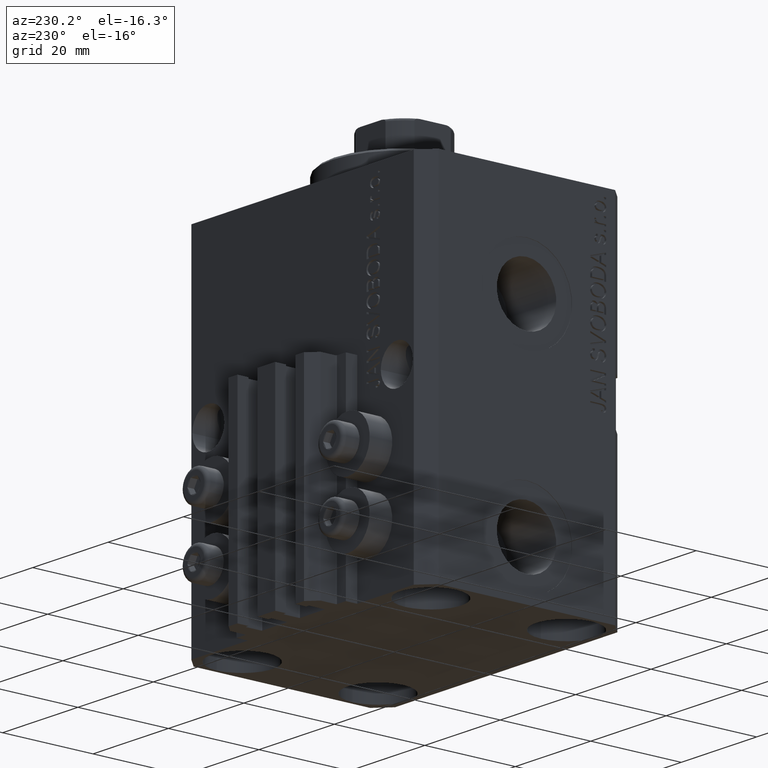
[diagram: clean part render]
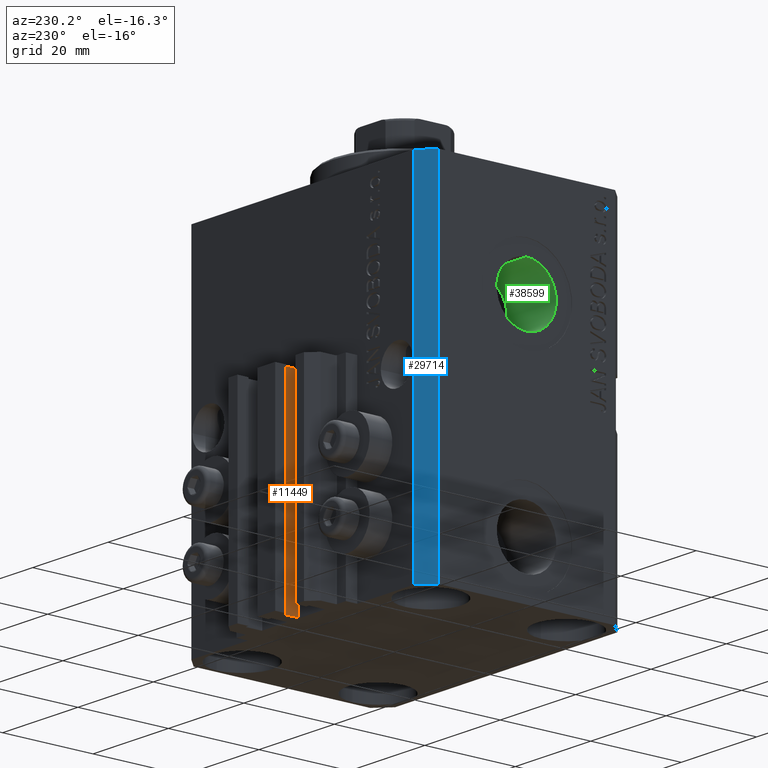
[diagram: same view with three faces highlighted in distinct colors, each labeled with its STEP entity id]
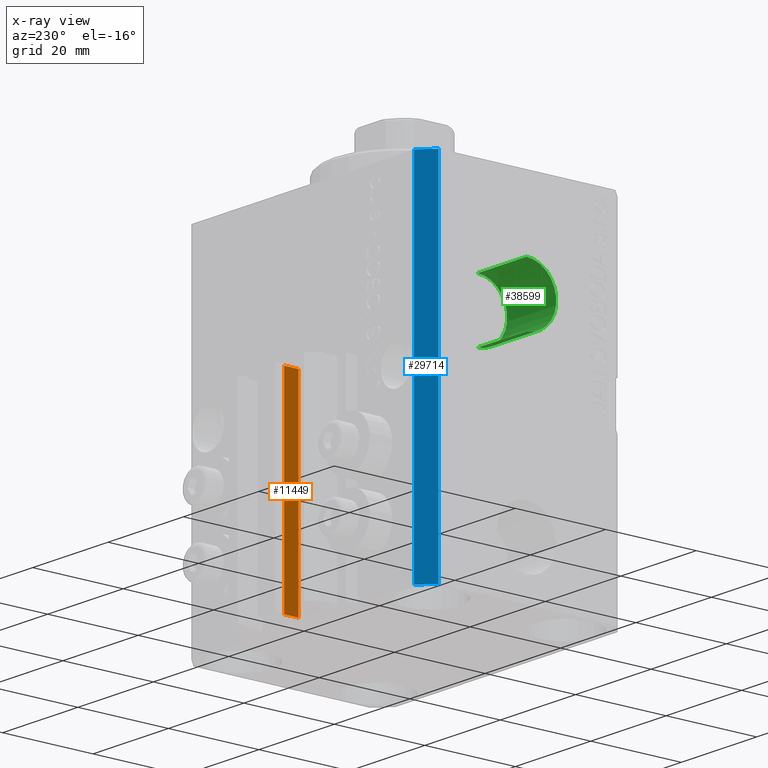
[diagram: x-ray of the same camera — body ghosted, the three highlighted faces saturated]
A machine part, auxiliary view with three faces highlighted in distinct colors.
The next image is the same camera in x-ray (body ghosted, the three faces saturated) — at least one of them is partly hidden behind the body in this view.
Their STEP definitions:

[orange] entity #11449 — the highlighted planar face has unit normal (-1, 0, 0).
#511 = VECTOR ( 'NONE', #24440, 1000.000000000000000 ) ;
#987 = LINE ( 'NONE', #18845, #26549 ) ;
#3440 = LINE ( 'NONE', #39686, #34460 ) ;
#4759 = FACE_OUTER_BOUND ( 'NONE', #35731, .T. ) ;
#4968 = ORIENTED_EDGE ( 'NONE', *, *, #41021, .T. ) ;
#5194 = ORIENTED_EDGE ( 'NONE', *, *, #11856, .F. ) ;
#6621 = LINE ( 'NONE', #35701, #15180 ) ;
#7066 = ORIENTED_EDGE ( 'NONE', *, *, #16585, .T. ) ;
#9012 = CARTESIAN_POINT ( 'NONE',  ( -1.600000000000000755, 24.69999999999949480, -77.00000000000000000 ) ) ;
#9513 = DIRECTION ( 'NONE',  ( -6.776263578034385456E-17, -1.000000000000000000, 0.000000000000000000 ) ) ;
#9911 = CARTESIAN_POINT ( 'NONE',  ( -1.600000000000003197, 27.89999999999950120, -77.00000000000000000 ) ) ;
#11449 = ADVANCED_FACE ( 'NONE', ( #4759 ), #30237, .T. ) ;
#11856 = EDGE_CURVE ( 'NONE', #13576, #26800, #42590, .T. ) ;
#13576 = VERTEX_POINT ( 'NONE', #24800 ) ;
#15180 = VECTOR ( 'NONE', #31885, 1000.000000000000000 ) ;
#16585 = EDGE_CURVE ( 'NONE', #27391, #37515, #987, .T. ) ;
#18845 = CARTESIAN_POINT ( 'NONE',  ( -1.600000000000000755, 24.69999999999949480, -77.00000000000000000 ) ) ;
#22096 = ORIENTED_EDGE ( 'NONE', *, *, #28009, .F. ) ;
#24440 = DIRECTION ( 'NONE',  ( 0.000000000000000000, 0.000000000000000000, 1.000000000000000000 ) ) ;
#24800 = CARTESIAN_POINT ( 'NONE',  ( -1.600000000000003197, 27.89999999999950120, -77.00000000000000000 ) ) ;
#26549 = VECTOR ( 'NONE', #40812, 1000.000000000000000 ) ;
#26800 = VERTEX_POINT ( 'NONE', #30425 ) ;
#27391 = VERTEX_POINT ( 'NONE', #9012 ) ;
#27623 = DIRECTION ( 'NONE',  ( -1.000000000000000000, 6.776263578034385456E-17, 0.000000000000000000 ) ) ;
#28009 = EDGE_CURVE ( 'NONE', #26800, #37515, #3440, .T. ) ;
#30237 = PLANE ( 'NONE',  #30972 ) ;
#30425 = CARTESIAN_POINT ( 'NONE',  ( -1.600000000000003197, 27.89999999999950120, -33.00000000000000000 ) ) ;
#30972 = AXIS2_PLACEMENT_3D ( 'NONE', #45284, #27623, #9513 ) ;
#31885 = DIRECTION ( 'NONE',  ( -6.776263578034385456E-17, -1.000000000000000000, 0.000000000000000000 ) ) ;
#34460 = VECTOR ( 'NONE', #36327, 1000.000000000000000 ) ;
#35701 = CARTESIAN_POINT ( 'NONE',  ( -1.600000000000000533, 27.89999999999950120, -77.00000000000000000 ) ) ;
#35731 = EDGE_LOOP ( 'NONE', ( #22096, #5194, #4968, #7066 ) ) ;
#36327 = DIRECTION ( 'NONE',  ( -6.776263578034385456E-17, -1.000000000000000000, 0.000000000000000000 ) ) ;
#37515 = VERTEX_POINT ( 'NONE', #38706 ) ;
#38706 = CARTESIAN_POINT ( 'NONE',  ( -1.600000000000000755, 24.69999999999949480, -33.00000000000000000 ) ) ;
#39686 = CARTESIAN_POINT ( 'NONE',  ( -1.600000000000000533, 27.89999999999950120, -33.00000000000000000 ) ) ;
#40812 = DIRECTION ( 'NONE',  ( 0.000000000000000000, 0.000000000000000000, 1.000000000000000000 ) ) ;
#41021 = EDGE_CURVE ( 'NONE', #13576, #27391, #6621, .T. ) ;
#42590 = LINE ( 'NONE', #9911, #511 ) ;
#45284 = CARTESIAN_POINT ( 'NONE',  ( -1.600000000000000533, 27.89999999999950120, -77.00000000000000000 ) ) ;

[blue] entity #29714 — the highlighted planar face has unit normal (-0.7071, 0.7071, 0).
#478 = VECTOR ( 'NONE', #42557, 1000.000000000000000 ) ;
#964 = AXIS2_PLACEMENT_3D ( 'NONE', #8917, #16296, #31076 ) ;
#1059 = PLANE ( 'NONE',  #964 ) ;
#2625 = DIRECTION ( 'NONE',  ( -0.7071067811865474617, -0.7071067811865474617, 0.000000000000000000 ) ) ;
#2807 = CARTESIAN_POINT ( 'NONE',  ( -29.49999999999650413, 22.49999999999949907, 0.000000000000000000 ) ) ;
#2836 = ORIENTED_EDGE ( 'NONE', *, *, #28698, .F. ) ;
#5213 = VERTEX_POINT ( 'NONE', #6775 ) ;
#5342 = DIRECTION ( 'NONE',  ( -0.7071067811865474617, -0.7071067811865474617, 0.000000000000000000 ) ) ;
#6721 = EDGE_LOOP ( 'NONE', ( #44649, #2836, #35604, #21728 ) ) ;
#6775 = CARTESIAN_POINT ( 'NONE',  ( -32.49999999999650413, 19.49999999999949907, 0.000000000000000000 ) ) ;
#7640 = EDGE_CURVE ( 'NONE', #25401, #5213, #35853, .T. ) ;
#8917 = CARTESIAN_POINT ( 'NONE',  ( -29.49999999999650413, 22.49999999999949907, -77.00000000000000000 ) ) ;
#10745 = EDGE_CURVE ( 'NONE', #35329, #5213, #19151, .T. ) ;
#11068 = CARTESIAN_POINT ( 'NONE',  ( -29.49999999999650413, 22.49999999999949907, -77.00000000000000000 ) ) ;
#15347 = CARTESIAN_POINT ( 'NONE',  ( -29.49999999999650413, 22.49999999999949907, 0.000000000000000000 ) ) ;
#16296 = DIRECTION ( 'NONE',  ( -0.7071067811865475727, 0.7071067811865475727, 0.000000000000000000 ) ) ;
#16524 = FACE_OUTER_BOUND ( 'NONE', #6721, .T. ) ;
#17862 = CARTESIAN_POINT ( 'NONE',  ( -29.49999999999650413, 22.49999999999949907, -77.00000000000000000 ) ) ;
#18448 = LINE ( 'NONE', #11068, #29093 ) ;
#19151 = LINE ( 'NONE', #15347, #32590 ) ;
#19560 = CARTESIAN_POINT ( 'NONE',  ( -32.49999999999650413, 19.49999999999949907, -77.00000000000000000 ) ) ;
#20788 = CARTESIAN_POINT ( 'NONE',  ( -29.49999999999650413, 22.49999999999949907, -77.00000000000000000 ) ) ;
#21286 = CARTESIAN_POINT ( 'NONE',  ( -32.49999999999650413, 19.49999999999949907, -77.00000000000000000 ) ) ;
#21728 = ORIENTED_EDGE ( 'NONE', *, *, #7640, .T. ) ;
#25401 = VERTEX_POINT ( 'NONE', #19560 ) ;
#28698 = EDGE_CURVE ( 'NONE', #42413, #35329, #18448, .T. ) ;
#29035 = VECTOR ( 'NONE', #2625, 1000.000000000000114 ) ;
#29093 = VECTOR ( 'NONE', #33236, 1000.000000000000000 ) ;
#29714 = ADVANCED_FACE ( 'NONE', ( #16524 ), #1059, .T. ) ;
#31076 = DIRECTION ( 'NONE',  ( -0.7071067811865474617, -0.7071067811865474617, 0.000000000000000000 ) ) ;
#32590 = VECTOR ( 'NONE', #5342, 1000.000000000000114 ) ;
#33236 = DIRECTION ( 'NONE',  ( 0.000000000000000000, 0.000000000000000000, 1.000000000000000000 ) ) ;
#35329 = VERTEX_POINT ( 'NONE', #2807 ) ;
#35604 = ORIENTED_EDGE ( 'NONE', *, *, #44993, .T. ) ;
#35853 = LINE ( 'NONE', #21286, #478 ) ;
#42413 = VERTEX_POINT ( 'NONE', #20788 ) ;
#42557 = DIRECTION ( 'NONE',  ( 0.000000000000000000, 0.000000000000000000, 1.000000000000000000 ) ) ;
#44649 = ORIENTED_EDGE ( 'NONE', *, *, #10745, .F. ) ;
#44993 = EDGE_CURVE ( 'NONE', #42413, #25401, #46960, .T. ) ;
#46960 = LINE ( 'NONE', #17862, #29035 ) ;

[green] entity #38599 — the highlighted cylindrical surface (partial cylindrical patch) has radius 6.58 mm, axis along (-1, -0, -0).
#63 = ORIENTED_EDGE ( 'NONE', *, *, #18531, .T. ) ;
#304 = LINE ( 'NONE', #10577, #34741 ) ;
#2259 = AXIS2_PLACEMENT_3D ( 'NONE', #45615, #44505, #23418 ) ;
#5770 = VERTEX_POINT ( 'NONE', #16772 ) ;
#6864 = EDGE_CURVE ( 'NONE', #5770, #8920, #304, .T. ) ;
#8513 = EDGE_LOOP ( 'NONE', ( #33585, #28960, #63, #9718 ) ) ;
#8809 = LINE ( 'NONE', #16419, #30596 ) ;
#8920 = VERTEX_POINT ( 'NONE', #15267 ) ;
#9136 = DIRECTION ( 'NONE',  ( 0.000000000000000000, 0.000000000000000000, 1.000000000000000000 ) ) ;
#9718 = ORIENTED_EDGE ( 'NONE', *, *, #27293, .F. ) ;
#10577 = CARTESIAN_POINT ( 'NONE',  ( -19.39999999999650271, 8.058175938389580558E-16, -28.57999999999999829 ) ) ;
#13093 = DIRECTION ( 'NONE',  ( -1.000000000000000000, -0.000000000000000000, -0.000000000000000000 ) ) ;
#14111 = DIRECTION ( 'NONE',  ( 0.000000000000000000, 0.000000000000000000, 1.000000000000000000 ) ) ;
#15267 = CARTESIAN_POINT ( 'NONE',  ( -32.39999999999650271, 8.058175938389579572E-16, -28.57999999999999829 ) ) ;
#16419 = CARTESIAN_POINT ( 'NONE',  ( -19.39999999999650271, 0.000000000000000000, -15.41999999999999993 ) ) ;
#16772 = CARTESIAN_POINT ( 'NONE',  ( -19.39999999999650271, 8.058175938389579572E-16, -28.57999999999999829 ) ) ;
#17446 = DIRECTION ( 'NONE',  ( -1.000000000000000000, -0.000000000000000000, -0.000000000000000000 ) ) ;
#17458 = VERTEX_POINT ( 'NONE', #29623 ) ;
#18140 = AXIS2_PLACEMENT_3D ( 'NONE', #23424, #20084, #9136 ) ;
#18531 = EDGE_CURVE ( 'NONE', #8920, #17458, #37295, .T. ) ;
#19034 = CARTESIAN_POINT ( 'NONE',  ( -19.39999999999650271, 0.000000000000000000, -15.41999999999999993 ) ) ;
#20084 = DIRECTION ( 'NONE',  ( -1.000000000000000000, 0.000000000000000000, 0.000000000000000000 ) ) ;
#21244 = CYLINDRICAL_SURFACE ( 'NONE', #29576, 6.579999999999999183 ) ;
#23418 = DIRECTION ( 'NONE',  ( 0.000000000000000000, 0.000000000000000000, 1.000000000000000000 ) ) ;
#23424 = CARTESIAN_POINT ( 'NONE',  ( -19.39999999999650271, 0.000000000000000000, -22.00000000000000000 ) ) ;
#25100 = DIRECTION ( 'NONE',  ( -1.000000000000000000, -0.000000000000000000, -0.000000000000000000 ) ) ;
#27293 = EDGE_CURVE ( 'NONE', #29412, #17458, #8809, .T. ) ;
#28183 = FACE_OUTER_BOUND ( 'NONE', #8513, .T. ) ;
#28960 = ORIENTED_EDGE ( 'NONE', *, *, #6864, .T. ) ;
#29412 = VERTEX_POINT ( 'NONE', #19034 ) ;
#29576 = AXIS2_PLACEMENT_3D ( 'NONE', #35578, #17446, #14111 ) ;
#29623 = CARTESIAN_POINT ( 'NONE',  ( -32.39999999999650271, 0.000000000000000000, -15.41999999999999993 ) ) ;
#30596 = VECTOR ( 'NONE', #13093, 1000.000000000000000 ) ;
#33585 = ORIENTED_EDGE ( 'NONE', *, *, #37483, .F. ) ;
#34741 = VECTOR ( 'NONE', #25100, 1000.000000000000000 ) ;
#35578 = CARTESIAN_POINT ( 'NONE',  ( -19.39999999999650271, 0.000000000000000000, -22.00000000000000000 ) ) ;
#37295 = CIRCLE ( 'NONE', #2259, 6.579999999999999183 ) ;
#37483 = EDGE_CURVE ( 'NONE', #5770, #29412, #40228, .T. ) ;
#38599 = ADVANCED_FACE ( 'NONE', ( #28183 ), #21244, .F. ) ;
#40228 = CIRCLE ( 'NONE', #18140, 6.579999999999999183 ) ;
#44505 = DIRECTION ( 'NONE',  ( -1.000000000000000000, 0.000000000000000000, 0.000000000000000000 ) ) ;
#45615 = CARTESIAN_POINT ( 'NONE',  ( -32.39999999999650271, 0.000000000000000000, -22.00000000000000000 ) ) ;